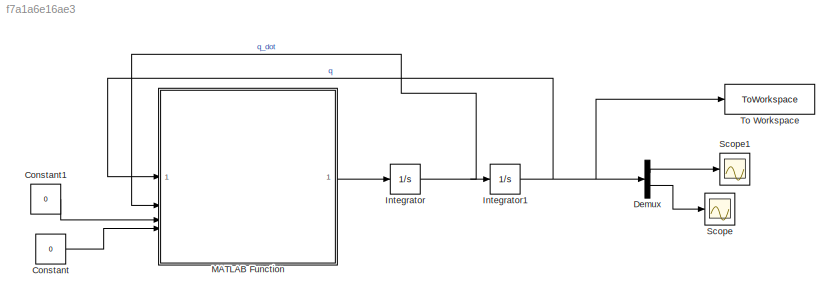
MODEL slx_f7a1a6e16ae3
KIND model
CONFIG AbsTol = auto
CONFIG EnableMultiTasking = off
CONFIG FixedStep = 0.1
CONFIG MaxStep = auto
CONFIG MinStep = auto
CONFIG RelTol = 1e-3
CONFIG SampleTimeConstraint = Unconstrained
CONFIG SolverName = ode4
CONFIG StartTime = 0.0
CONFIG StopTime = 110
BLOCK [Constant] Constant
  Value = 0
BLOCK [Constant] Constant1
  Value = 0
BLOCK [Demux] Demux
  Outputs = 2
BLOCK [Integrator] Integrator
  InitialCondition = [0,0]
BLOCK [Integrator] Integrator1
  InitialCondition = [11.5,pi/3]
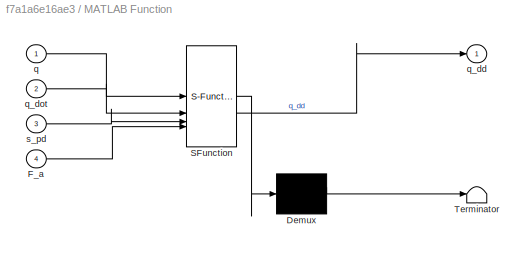
BLOCK [SubSystem] MATLAB Function
  ErrorFcn = Stateflow.Translate.translate
  PermitHierarchicalResolution = ExplicitOnly
  SFBlockType = MATLAB Function
  TreatAsAtomicUnit = on
BLOCK [Demux] MATLAB Function/ Demux 
  Outputs = 1
BLOCK [S-Function] MATLAB Function/ SFunction 
  EnableBusSupport = off
  FunctionName = sf_sfun
  PortCounts = [4 2]
  SFcnIsStateOwnerBlock = off
  SFunctionDeploymentMode = off
  Tag = Stateflow S-Function 2
BLOCK [Terminator] MATLAB Function/ Terminator 
BLOCK [Inport] MATLAB Function/F_a
  Port = 4
BLOCK [Inport] MATLAB Function/q
BLOCK [Outport] MATLAB Function/q_dd
BLOCK [Inport] MATLAB Function/q_dot
  Port = 2
BLOCK [Inport] MATLAB Function/s_pd
  Port = 3
BLOCK [Scope] Scope
  ActiveDisplayYMaximum = 2.3883257204682788
  ActiveDisplayYMinimum = 0.22511347109079183
  Floating = off
  GraphicalSettings = {"Style":{"BackgroundColor":[0.12941176470588237,0.12941176470588237,0.12941176470588237],"AxesColor":[0.07058823529411765,0.07058823529411765,0.07058823529411765],"LabelsColor":[0.8509803921568627,0.8509803921568627,0.8509803921568627],"PreserveColors":false,"Visible":[true],"LineStyle":["-"],"LineWidth":[1.5],"BarWidth":[0.9],"LineColor":["auto"],"LineFaceAlpha":[1],"LineEdgeAlpha":[1],"Marker":...<+1965ch>
  MultipleDisplayCache = [{"MaxYLimMag":10,"MaxYLimReal":2.3883257204682788,"MinYLimMag":0,"MinYLimReal":0.22511347109079183,"PlotAsMagnitudePhase":false,"ShowGrid":true,"ShowLegend":false,"Title":"%<SignalLabel>","YLabel":""}]
  NumInputPorts = 1
  ScopeFrameLocation = window
  Visible = on
  WasSavedAsWebScope = on
  WindowPosition = [172.000000,383.000000,560.000000,420.000000,]
BLOCK [Scope] Scope1
  ActiveDisplayYMaximum = 13.030120965311056
  ActiveDisplayYMinimum = 11.440410710528061
  DataLoggingVariableName = ScopeData1
  Floating = off
  GraphicalSettings = {"Style":{"BackgroundColor":[0.12941176470588237,0.12941176470588237,0.12941176470588237],"AxesColor":[0.07058823529411765,0.07058823529411765,0.07058823529411765],"LabelsColor":[0.8509803921568627,0.8509803921568627,0.8509803921568627],"PreserveColors":false,"Visible":[true],"LineStyle":["-"],"LineWidth":[1.5],"BarWidth":[0.9],"LineColor":["auto"],"LineFaceAlpha":[1],"LineEdgeAlpha":[1],"Marker":...<+2031ch>
  MultipleDisplayCache = [{"MaxYLimMag":12.180135566241473,"MaxYLimReal":13.030120965311056,"MinYLimMag":11.125498561634615,"MinYLimReal":11.440410710528061,"PlotAsMagnitudePhase":false,"ShowGrid":true,"ShowLegend":false,"Title":"%<SignalLabel>","YLabel":""}]
  NumInputPorts = 1
  ScopeFrameLocation = window
  Visible = on
  WasSavedAsWebScope = on
  WindowPosition = [788.000000,387.000000,560.000000,420.000000,]
BLOCK [ToWorkspace] To Workspace
  FixptAsFi = on
  MaxDataPoints = inf
  SampleTime = -1
  VariableName = q
LINE Constant1:1 -> MATLAB Function:3
LINE Constant:1 -> MATLAB Function:4
LINE Demux:1 -> Scope1:1
LINE Demux:2 -> Scope:1
NET Integrator1:1 -> Demux:1, MATLAB Function:1, To Workspace:1
NET Integrator:1 -> Integrator1:1, MATLAB Function:2
LINE MATLAB Function:1 -> Integrator:1
note: NET lines group one-source signal fan-out (src -> all destinations, sorted); 1:1 wires keep LINE
CHART MATLAB Function states=1 transitions=1
  STATE_LABEL 'eML_blk_kernel()'
  STATE_LABEL 'SCRIPT:\nfunction q_dd = fcn(q, q_dot, s_pd, F_a)\n% q_dd = fcn(q, q_dot, s_pd, F_a)\n% q      = [x; theta]\n% q_dot  = [x_dot; theta_dot]\n% s_pd   = (unused here, but kept for interface compatibility)\n% F_a    = actuator force input\n\n    % constants\n    g = 9.81;\n    L0 = 30;\n    L1 = 25;\n    L2 = 10;\n    m0 = 10^4;\n    m1 = 10^4;\n    m2 = 2000;\n    m3 = 500;\n    dx = 200;\n    dw = 2000;\n    dphi = 2...<+1052ch>'
CHART  states=0 transitions=0
